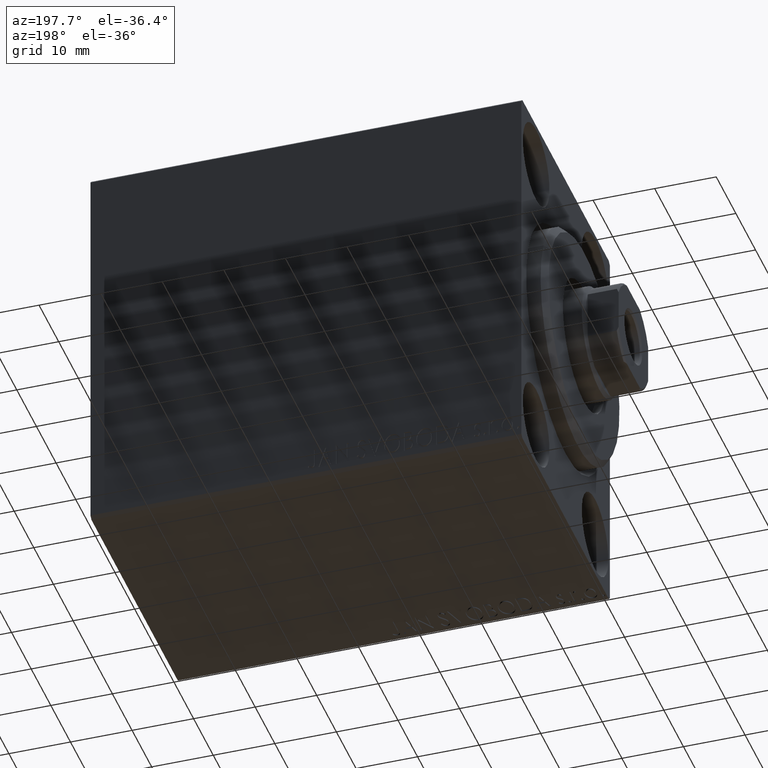
[diagram: clean part render]
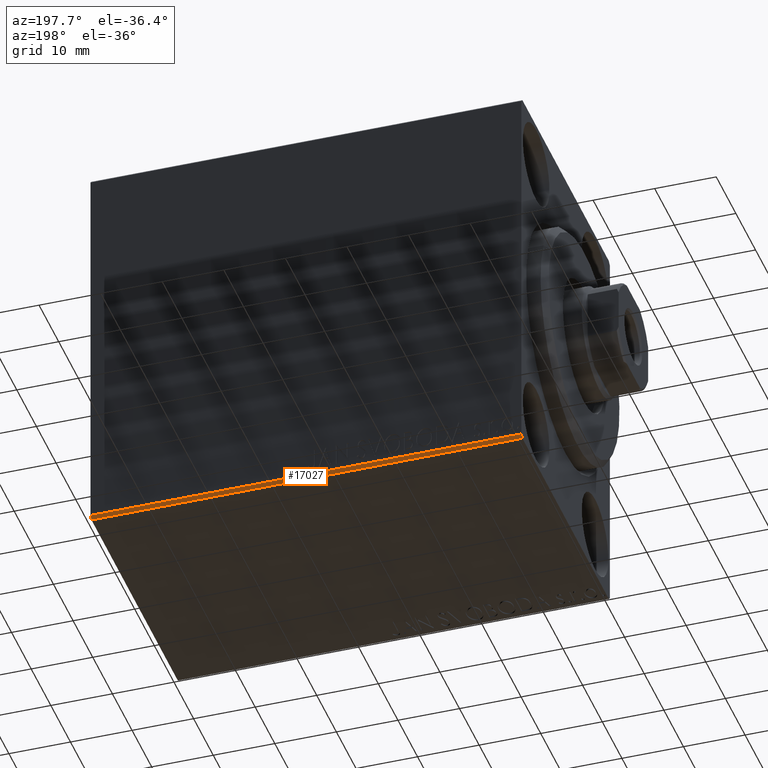
[diagram: same view with one face highlighted and labeled with its STEP entity id]
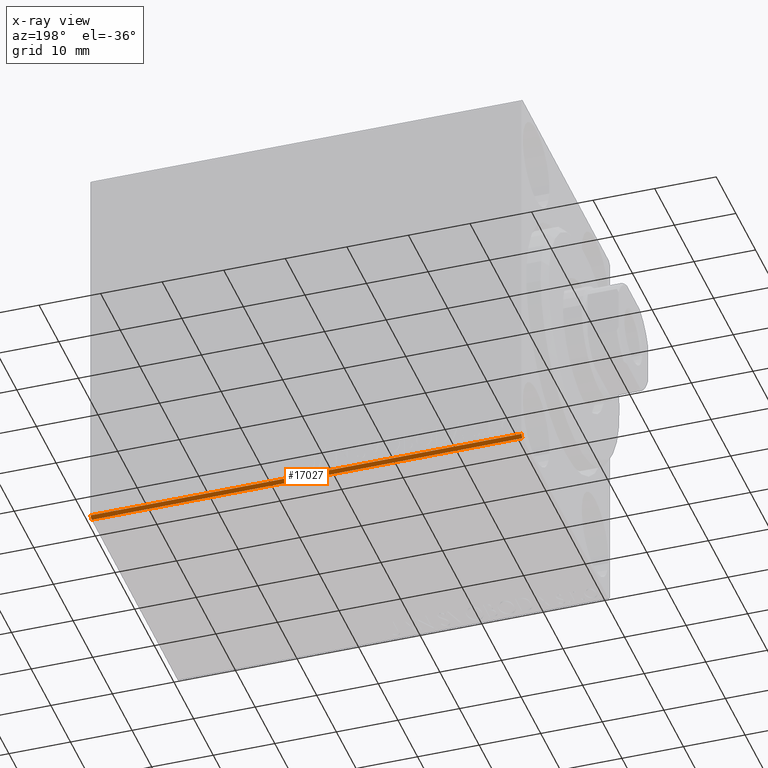
[diagram: x-ray of the same camera — body ghosted, the highlighted face saturated]
A machine part, auxiliary view. The second image highlights one B-rep face of the part: STEP entity #17027.
The next image is the same camera in x-ray: the body ghosted, the highlighted face saturated — about 0% of this face is hidden behind the body in this view.
In plain terms, the highlighted planar face has unit normal (0, -0.7071, 0.7071).
Its self-contained STEP definition (entity closure, byte-faithful):
#487 = CARTESIAN_POINT ( 'NONE',  ( 70.00000000000000000, 22.50000000000000000, -32.00000000000002132 ) ) ;
#611 = CARTESIAN_POINT ( 'NONE',  ( 70.00000000000000000, 22.50000000000000000, -32.00000000000002132 ) ) ;
#5575 = CARTESIAN_POINT ( 'NONE',  ( 70.00000000000000000, 22.00000000000002487, -32.50000000000000711 ) ) ;
#6198 = CARTESIAN_POINT ( 'NONE',  ( 70.00000000000000000, 27.25000000000032685, -27.24999999999957012 ) ) ;
#7663 = CARTESIAN_POINT ( 'NONE',  ( 70.00000000000000000, 22.50000000000000000, -32.00000000000002132 ) ) ;
#7958 = DIRECTION ( 'NONE',  ( -1.000000000000000000, 0.000000000000000000, 0.000000000000000000 ) ) ;
#8033 = CARTESIAN_POINT ( 'NONE',  ( 70.00000000000000000, 22.00000000000001421, -32.50000000000000711 ) ) ;
#9358 = LINE ( 'NONE', #5575, #20643 ) ;
#11153 = VECTOR ( 'NONE', #7958, 1000.000000000000000 ) ;
#11410 = ORIENTED_EDGE ( 'NONE', *, *, #18848, .F. ) ;
#11659 = FACE_OUTER_BOUND ( 'NONE', #30782, .T. ) ;
#13161 = ORIENTED_EDGE ( 'NONE', *, *, #15724, .F. ) ;
#14344 = LINE ( 'NONE', #41703, #38791 ) ;
#15064 = VERTEX_POINT ( 'NONE', #16786 ) ;
#15724 = EDGE_CURVE ( 'NONE', #26356, #15064, #14344, .T. ) ;
#16025 = EDGE_CURVE ( 'NONE', #27926, #17174, #22691, .T. ) ;
#16786 = CARTESIAN_POINT ( 'NONE',  ( 0.000000000000000000, 22.00000000000001421, -32.50000000000000711 ) ) ;
#17027 = ADVANCED_FACE ( 'NONE', ( #11659 ), #21686, .F. ) ;
#17174 = VERTEX_POINT ( 'NONE', #487 ) ;
#18848 = EDGE_CURVE ( 'NONE', #17174, #26356, #24423, .T. ) ;
#20643 = VECTOR ( 'NONE', #36496, 1000.000000000000000 ) ;
#21252 = DIRECTION ( 'NONE',  ( 0.000000000000000000, -0.7071067811865376918, -0.7071067811865573427 ) ) ;
#21686 = PLANE ( 'NONE',  #38121 ) ;
#22691 = LINE ( 'NONE', #6198, #26700 ) ;
#24256 = CARTESIAN_POINT ( 'NONE',  ( 0.000000000000000000, 22.50000000000000000, -32.00000000000002132 ) ) ;
#24423 = LINE ( 'NONE', #611, #11153 ) ;
#26356 = VERTEX_POINT ( 'NONE', #24256 ) ;
#26700 = VECTOR ( 'NONE', #39809, 1000.000000000000114 ) ;
#27908 = DIRECTION ( 'NONE',  ( -1.000000000000000000, 0.000000000000000000, 0.000000000000000000 ) ) ;
#27926 = VERTEX_POINT ( 'NONE', #8033 ) ;
#30782 = EDGE_LOOP ( 'NONE', ( #42598, #43645, #13161, #11410 ) ) ;
#35237 = DIRECTION ( 'NONE',  ( 0.000000000000000000, -0.7071067811865573427, 0.7071067811865376918 ) ) ;
#36496 = DIRECTION ( 'NONE',  ( 1.000000000000000000, 0.000000000000000000, 0.000000000000000000 ) ) ;
#37015 = EDGE_CURVE ( 'NONE', #15064, #27926, #9358, .T. ) ;
#38121 = AXIS2_PLACEMENT_3D ( 'NONE', #7663, #35237, #27908 ) ;
#38791 = VECTOR ( 'NONE', #21252, 1000.000000000000114 ) ;
#39809 = DIRECTION ( 'NONE',  ( -0.000000000000000000, 0.7071067811865376918, 0.7071067811865573427 ) ) ;
#41703 = CARTESIAN_POINT ( 'NONE',  ( 0.000000000000000000, 22.50000000000000000, -32.00000000000002132 ) ) ;
#42598 = ORIENTED_EDGE ( 'NONE', *, *, #16025, .F. ) ;
#43645 = ORIENTED_EDGE ( 'NONE', *, *, #37015, .F. ) ;